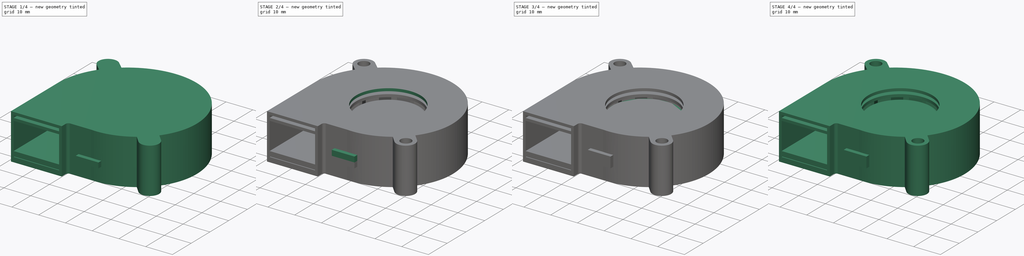
[diagram: build sequence overview — one tinted view per stage of 4, left to right]
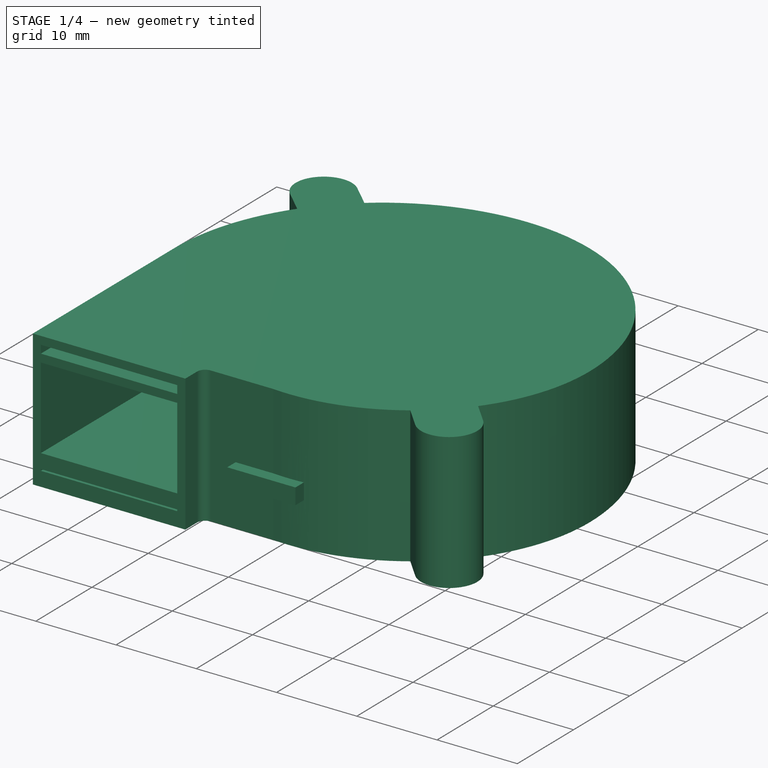
[diagram: stage 1 of 4 — iso view after this stage's code; geometry added in this stage tinted green]
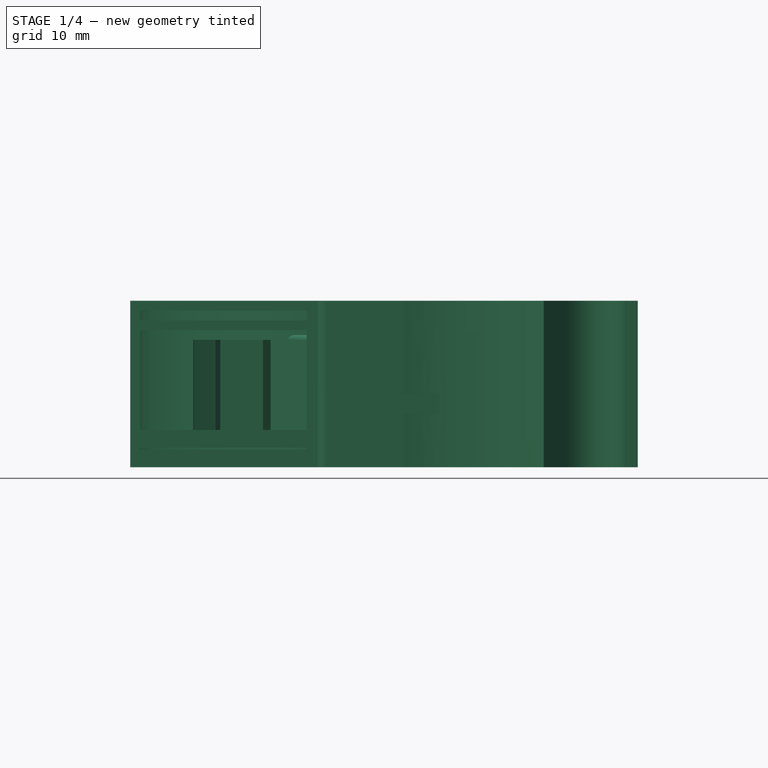
[diagram: stage 1 of 4 — front view after this stage's code; geometry added in this stage tinted green]
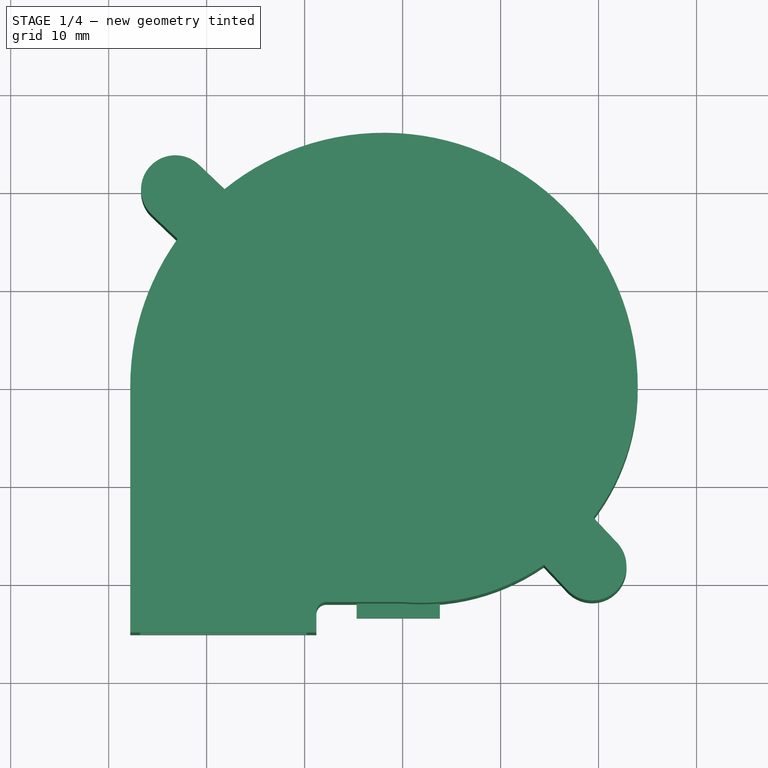
[diagram: stage 1 of 4 — top view after this stage's code; geometry added in this stage tinted green]
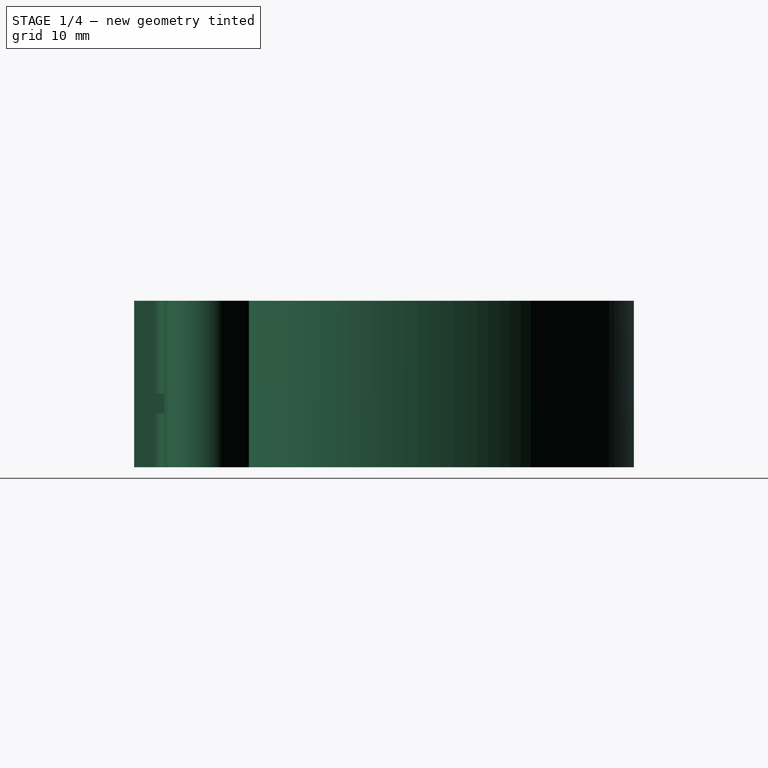
[diagram: stage 1 of 4 — right view after this stage's code; geometry added in this stage tinted green]
FCSTD DOCUMENT  (FreeCAD 0.14R3310 (Git))
Label: 79. VENTILADOR DE LA TOBERA
License: CC-BY 3.0
LicenseURL: http://creativecommons.org/licenses/by/3.0/
objects: Sketcher::SketchObject×9, PartDesign::Pad×6, Part::Feature×4, Part::Part2DObjectPython×4, PartDesign::Pocket×3, App::DocumentObjectGroup×3, PartDesign::PolarPattern×2, Part::Fillet×1, Part::Cut×1, Part::Compound×1
note: 40 computed .brp shape members not serialized (recipe doc carries the construction recipe); baked Part::Feature solids carry a one-line shape summary decoded from their .brp

FEATURE [App::DocumentObjectGroup] Group  label="Inner-part-src"
  Group = -> [Pad,Pad001,Pocket,PolarPattern,Pad002,PolarPattern001,Fillet]
FEATURE [Part::Feature] Fillet001  label="Inner-part-final"
  shape: bbox 43 x 43 x 11.5 mm, 153 faces (baked)
FEATURE [Sketcher::SketchObject] Sketch004  label="cover-main-body-sketch"
  sketch-geometry (22):
    g0: LineSegment [constr] StartX=-27.8 StartY=0 StartZ=0 EndX=24 EndY=0 EndZ=0
    g1: ArcOfCircle CenterX=-1.9 CenterY=0 CenterZ=0 NormalX=0 NormalY=0 NormalZ=1 Radius=25.9 StartAngle=0 EndAngle=2.25018
    g2: LineSegment StartX=-27.8 StartY=0 StartZ=0 EndX=-27.8 EndY=-25.1 EndZ=0
    g3: LineSegment StartX=-27.8 StartY=-25.1 StartZ=0 EndX=-8.8 EndY=-25.1 EndZ=0
    g4: LineSegment StartX=-7.8 StartY=-22 StartZ=0 EndX=0 EndY=-22 EndZ=0
    g5: LineSegment StartX=-8.8 StartY=-23 StartZ=0 EndX=-8.8 EndY=-25.1 EndZ=0
    g6: ArcOfCircle CenterX=1.91667 CenterY=0 CenterZ=0 NormalX=0 NormalY=0 NormalZ=1 Radius=22.0833 StartAngle=4.62549 EndAngle=5.31358
    g7: ArcOfCircle CenterX=-7.8 CenterY=-23 CenterZ=0 NormalX=0 NormalY=0 NormalZ=1 Radius=1 StartAngle=1.5708 EndAngle=3.14159
    g8: LineSegment [constr] StartX=16.8 StartY=-20.7501 StartZ=0 EndX=21.8944 EndY=-15.9494 EndZ=0
    g9: Circle [constr] CenterX=19.4 CenterY=-18.3 CenterZ=0 NormalX=0 NormalY=0 NormalZ=1 Radius=2
    g10: LineSegment StartX=14.4075 StartY=-18.2113 StartZ=0 EndX=16.8 EndY=-20.7501 EndZ=0
    g11: LineSegment [constr] StartX=19.4 StartY=-18.3 StartZ=0 EndX=24.4 EndY=-18.3 EndZ=0
    g12: LineSegment StartX=19.4797 StartY=-13.387 StartZ=0 EndX=21.8944 EndY=-15.9494 EndZ=0
    g13: ArcOfCircle CenterX=19.3472 CenterY=-18.3498 CenterZ=0 NormalX=0 NormalY=0 NormalZ=1 Radius=3.5 StartAngle=3.89732 EndAngle=7.03891
    g14: ArcOfCircle CenterX=1.91667 CenterY=0 CenterZ=0 NormalX=0 NormalY=0 NormalZ=1 Radius=22.0833 StartAngle=5.63191 EndAngle=6.28319
    g15: Circle [constr] CenterX=-23.2 CenterY=20.1 CenterZ=0 NormalX=0 NormalY=0 NormalZ=1 Radius=2
    g16: LineSegment [constr] StartX=-25.6122 StartY=17.564 StartZ=0 EndX=-20.7878 EndY=22.636 EndZ=0
    g17: LineSegment [constr] StartX=-23.2 StartY=20.1 StartZ=0 EndX=-19.2 EndY=20.1 EndZ=0
    g18: LineSegment StartX=-20.7878 StartY=22.636 StartZ=0 EndX=-18.1733 EndY=20.1492 EndZ=0
    g19: LineSegment StartX=-25.6122 StartY=17.564 StartZ=0 EndX=-22.9748 EndY=15.0554 EndZ=0
    g20: ArcOfCircle CenterX=-1.9 CenterY=0 CenterZ=0 NormalX=0 NormalY=0 NormalZ=1 Radius=25.9 StartAngle=2.52128 EndAngle=3.14159
    g21: ArcOfCircle CenterX=-23.2 CenterY=20.1 CenterZ=0 NormalX=0 NormalY=0 NormalZ=1 Radius=3.5 StartAngle=0.81042 EndAngle=3.95202
  constraints (67):
    c: Horizontal(g0)
    c: DistanceX(g0) = 51.8
    c: PointOnObject(g1,g0)
    c: Coincident(g20,g0)
    c: Coincident(g1,g0)
    c: DistanceX(g-1,g1) = -1.9
    c: PointOnObject(g1,g-1)
    c: Vertical(g2)
    c: Tangent(g2,g1)
    c: Coincident(g2,g0)
    c: DistanceY(g2) = -25.1
    c: Horizontal(g3)
    c: Coincident(g3,g2)
    c: DistanceX(g3) = 19
    c: Horizontal(g4)
    c: Vertical(g5)
    c: Coincident(g5,g3)
    c: PointOnObject(g4,g-2)
    c: Coincident(g14,g0)
    c: Coincident(g6,g4)
    c: PointOnObject(g6,g0)
    c: Tangent(g4,g7)
    c: Tangent(g5,g7)
    c: Radius(g7) = 1
    c: DistanceY(g4,g3) = -3.1
    c: Distance(g8) = 7
    c: DistanceX(g-1,g9) = 19.4
    c: DistanceY(g-1,g9) = -18.3
    c: PointOnObject(g9,g8)
    c: Coincident(g10,g8)
    c: Perpendicular(g10,g8)
    c: Horizontal(g11)
    c: Coincident(g11,g9)
    c: DistanceX(g11) = 5
    c: Angle(g11,g8) = 0.755728
    c: DistanceX(g8,g9) = 2.6
    c: Radius(g9) = 2
    c: Coincident(g12,g8)
    c: Parallel(g12,g10)
    c: Coincident(g13,g8)
    c: Coincident(g13,g8)
    c: Radius(g13) = 3.5
    c: Equal(g6,g14)
    c: Coincident(g6,g10)
    c: Coincident(g14,g12)
    c: Coincident(g6,g14)
    c: Radius(g15) = 2
    c: DistanceX(g-1,g15) = -23.2
    c: DistanceY(g-1,g15) = 20.1
    c: PointOnObject(g15,g16)
    c: Distance(g16) = 7
    c: Symmetric(g16,g16,g15)
    c: Horizontal(g17)
    c: Coincident(g17,g15)
    c: DistanceX(g17) = 4
    c: Angle(g16,g17) = 2.33117
    c: Coincident(g18,g16)
    c: Perpendicular(g18,g16)
    c: Parallel(g19,g18)
    c: Coincident(g19,g16)
    c: Equal(g1,g20)
    c: Coincident(g1,g18)
    c: Coincident(g20,g19)
    c: Coincident(g1,g20)
    c: Coincident(g21,g16)
    c: Coincident(g21,g16)
    c: Radius(g21) = 3.5
FEATURE [Part::Part2DObjectPython] Line002  # Draft 2D object (typed FeaturePython)
  ChamferSize = 0
  Closed = false
  End = (19.4,-18.3,15)
  FilletRadius = 0
  MakeFace = false
  Points = (2) [(0,0,15),(19.4,-18.3,15)]
  Start = (0,0,15)
  Support = -> Part__Feature
FEATURE [Part::Part2DObjectPython] Line003  # Draft 2D object (typed FeaturePython)
  ChamferSize = 0
  Closed = false
  End = (-23.2,20.1,15)
  FilletRadius = 0
  MakeFace = false
  Points = (2) [(0,0,15),(-23.2,20.1,15)]
  Start = (0,0,15)
  Support = -> Part__Feature
FEATURE [App::DocumentObjectGroup] Construction
  Group = -> [Line,Line001,Line002,Line003]
FEATURE [PartDesign::Pad] Pad003  label="cover-main-body"
  Length = 15
  Length2 = 100
  Sketch = -> Sketch004
  Type = 0
FEATURE [Sketcher::SketchObject] Sketch005  label="cover-inner-sketch"
  Placement = pos=(0,0,1.8) rot=(0,0,1;0rad)
  sketch-geometry (8):
    g0: LineSegment [constr] StartX=-26.8 StartY=0 StartZ=0 EndX=23 EndY=0 EndZ=0
    g1: ArcOfCircle CenterX=-1.9 CenterY=0 CenterZ=0 NormalX=0 NormalY=0 NormalZ=1 Radius=24.9 StartAngle=0 EndAngle=3.14159
    g2: LineSegment StartX=-26.8 StartY=0 StartZ=0 EndX=-26.8 EndY=-25.5 EndZ=0
    g3: LineSegment StartX=-26.8 StartY=-25.5 StartZ=0 EndX=-9.8 EndY=-25.5 EndZ=0
    g4: LineSegment StartX=-9.8 StartY=-23.4 StartZ=0 EndX=-9.8 EndY=-25.5 EndZ=0
    g5: LineSegment StartX=-7.8 StartY=-21.4 StartZ=0 EndX=0 EndY=-21.4 EndZ=0
    g6: ArcOfCircle CenterX=-7.8 CenterY=-23.4 CenterZ=0 NormalX=0 NormalY=0 NormalZ=1 Radius=2 StartAngle=1.5708 EndAngle=3.14159
    g7: ArcOfCircle CenterX=1.54435 CenterY=0 CenterZ=0 NormalX=0 NormalY=0 NormalZ=1 Radius=21.4557 StartAngle=4.64035 EndAngle=6.28319
  constraints (24):
    c: Horizontal(g0)
    c: DistanceX(g0) = 49.8
    c: PointOnObject(g0,g-1)
    c: PointOnObject(g1,g0)
    c: Coincident(g1,g0)
    c: Coincident(g1,g0)
    c: DistanceX(g-1,g1) = -1.9
    c: DistanceY(g2) = -25.5
    c: Coincident(g2,g0)
    c: Vertical(g2)
    c: Horizontal(g3)
    c: Coincident(g3,g2)
    c: DistanceX(g3) = 17
    c: Vertical(g4)
    c: Coincident(g4,g3)
    c: Horizontal(g5)
    c: PointOnObject(g5,g-2)
    c: Tangent(g4,g6)
    c: Tangent(g5,g6)
    c: Radius(g6) = 2
    c: DistanceY(g5,g3) = -4.1
    c: Coincident(g7,g0)
    c: Coincident(g7,g5)
    c: PointOnObject(g7,g0)
FEATURE [PartDesign::Pad] Pad004  label="cover-inner"
  Length = 12.2
  Length2 = 100
  Placement = pos=(0,0,1.8) rot=(0,0,1;0rad)
  Sketch = -> Sketch005
  Type = 0
FEATURE [Part::Cut] Cut  label="cover-1"
  Base = -> Pad003
  Tool = -> Pad004
FEATURE [App::DocumentObjectGroup] Group001  label="cover-src"
  Group = -> [Cut,Pocket001,Pocket002,Pad005]
FEATURE [Part::Feature] Pad005001  label="cover-final"
  Placement = pos=(0,0,-2) rot=(0,0,1;0rad)
  shape: bbox 51.8 x 51 x 15 mm, 33 faces (baked)
FEATURE [Part::Compound] Compound  label="Blower-50x50-final"
  Links = -> [Fillet001,Pad005001]
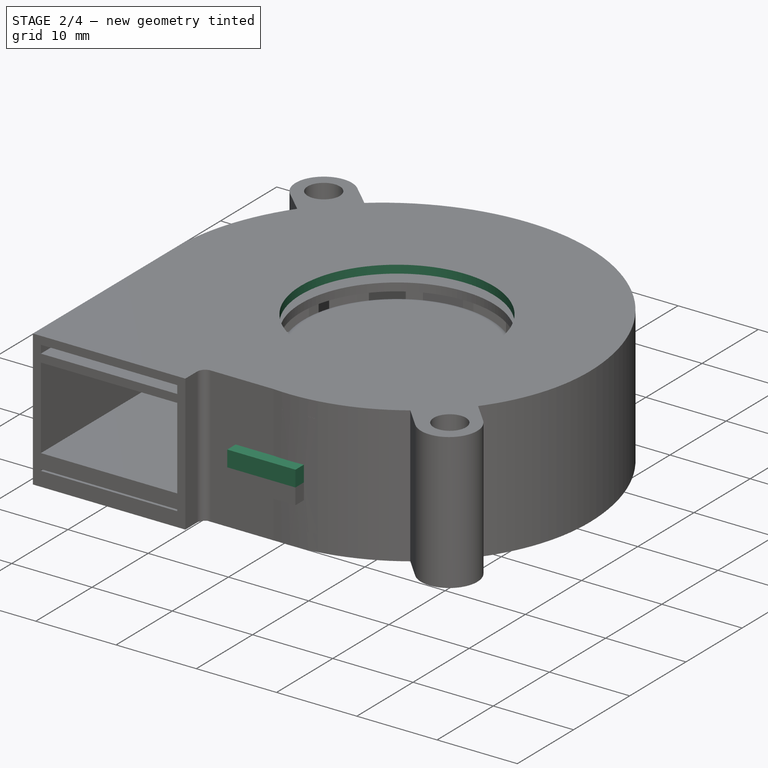
[diagram: stage 2 of 4 — iso view after this stage's code; geometry added in this stage tinted green]
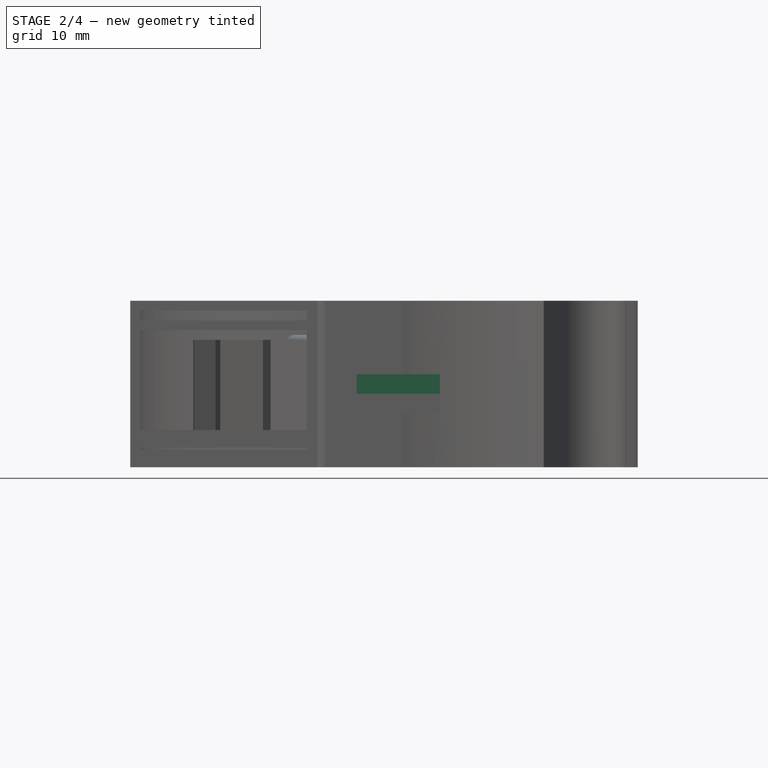
[diagram: stage 2 of 4 — front view after this stage's code; geometry added in this stage tinted green]
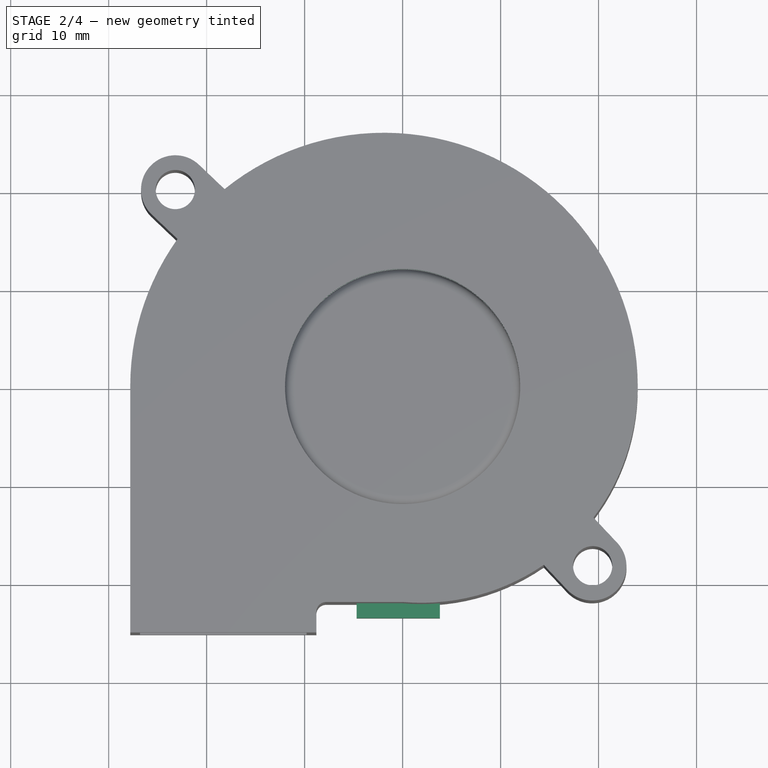
[diagram: stage 2 of 4 — top view after this stage's code; geometry added in this stage tinted green]
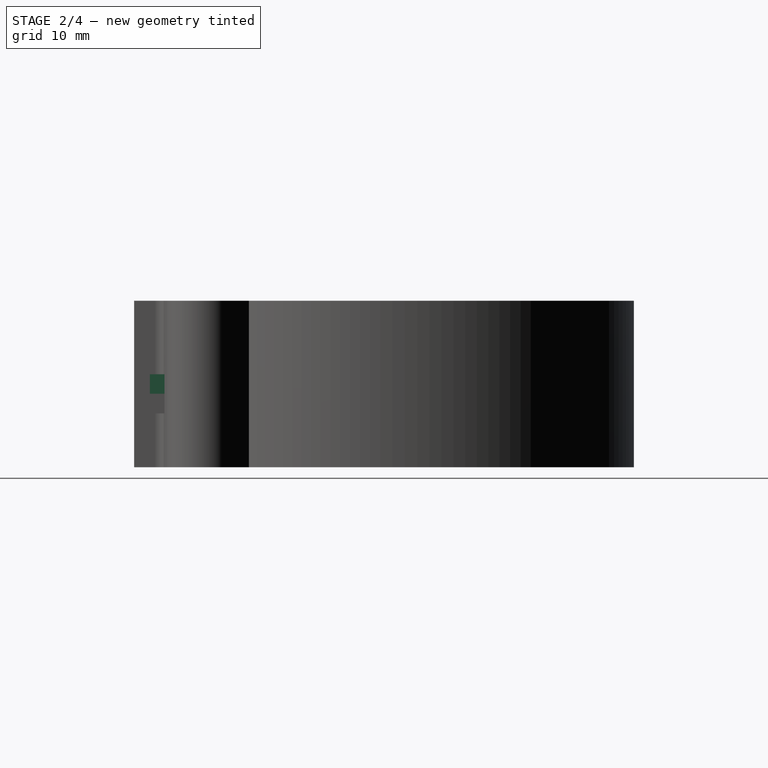
[diagram: stage 2 of 4 — right view after this stage's code; geometry added in this stage tinted green]
FEATURE [Sketcher::SketchObject] Sketch006  label="top-cutout-sketch"
  Placement = pos=(0,0,15) rot=(0,0,1;0rad)
  Support = -> Cut [Face5]
  sketch-geometry (1):
    g0: Circle CenterX=0 CenterY=0 CenterZ=0 NormalX=0 NormalY=0 NormalZ=1 Radius=12
  constraints (2):
    c: Coincident(g0,g-1)
    c: Radius(g0) = 12
FEATURE [PartDesign::Pocket] Pocket001  label="top-cutout"
  Length = 5
  Sketch = -> Sketch006
  Type = 0
FEATURE [Sketcher::SketchObject] Sketch007  label="drills-sketch"
  Placement = pos=(0,0,15) rot=(0,0,1;0rad)
  Support = -> Pocket001 [Face5]
  sketch-geometry (2):
    g0: Circle CenterX=-23.2 CenterY=20.1 CenterZ=0 NormalX=0 NormalY=0 NormalZ=1 Radius=2
    g1: Circle CenterX=19.4 CenterY=-18.3 CenterZ=0 NormalX=0 NormalY=0 NormalZ=1 Radius=2
  constraints (6):
    c: Equal(g1,g0)
    c: Radius(g0) = 2
    c: DistanceX(g-1,g0) = -23.2
    c: DistanceY(g-1,g0) = 20.1
    c: DistanceY(g-1,g1) = -18.3
    c: DistanceX(g-1,g1) = 19.4
FEATURE [PartDesign::Pocket] Pocket002  label="drills"
  Length = 5
  Sketch = -> Sketch007
  Type = 1
FEATURE [Sketcher::SketchObject] Sketch008  label="pad-1-sketch"
  Placement = pos=(0,-22,0) rot=(1,0,0;1.5708rad)
  Support = -> Pocket002 [Face12]
  sketch-geometry (4):
    g0: LineSegment StartX=-4.7 StartY=7.5 StartZ=0 EndX=3.8 EndY=7.5 EndZ=0
    g1: LineSegment StartX=3.8 StartY=7.5 StartZ=0 EndX=3.8 EndY=5.5 EndZ=0
    g2: LineSegment StartX=3.8 StartY=5.5 StartZ=0 EndX=-4.7 EndY=5.5 EndZ=0
    g3: LineSegment StartX=-4.7 StartY=5.5 StartZ=0 EndX=-4.7 EndY=7.5 EndZ=0
  constraints (12):
    c: Coincident(g0,g1)
    c: Coincident(g1,g2)
    c: Coincident(g2,g3)
    c: Coincident(g3,g0)
    c: Horizontal(g0)
    c: Horizontal(g2)
    c: Vertical(g1)
    c: Vertical(g3)
    c: DistanceX(g0) = 8.5
    c: DistanceY(g3) = 2
    c: DistanceX(g1) = 3.8
    c: DistanceY(g1) = 5.5
FEATURE [PartDesign::Pad] Pad005  label="pad-1"
  Length = 1.5
  Length2 = 100
  Sketch = -> Sketch008
  Type = 0
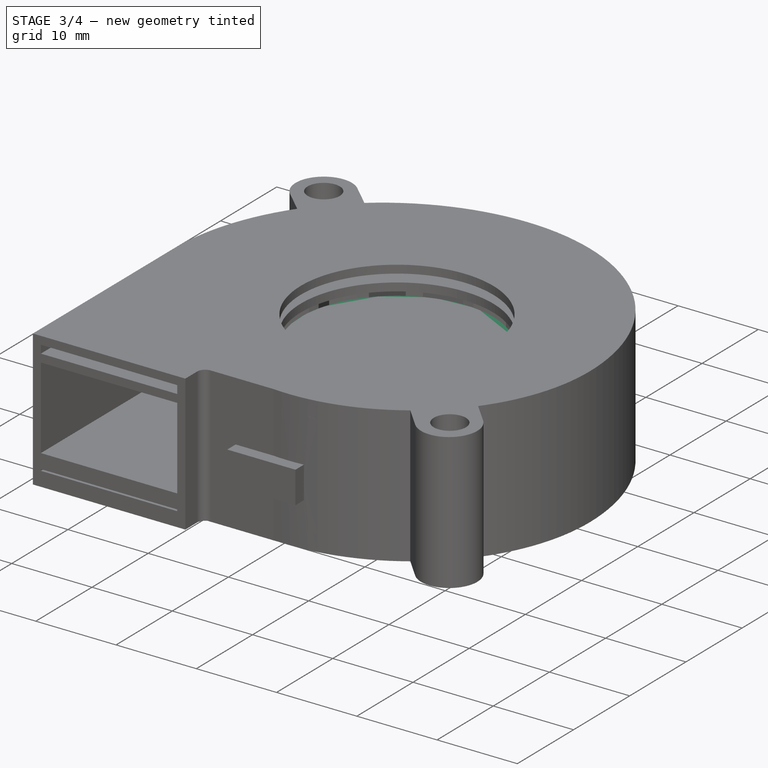
[diagram: stage 3 of 4 — iso view after this stage's code; geometry added in this stage tinted green]
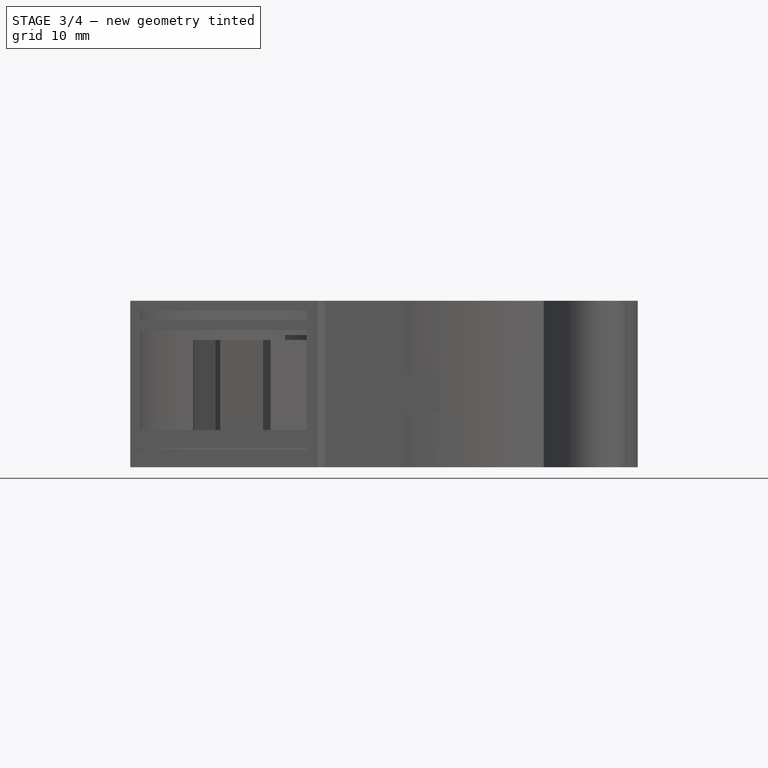
[diagram: stage 3 of 4 — front view after this stage's code; geometry added in this stage tinted green]
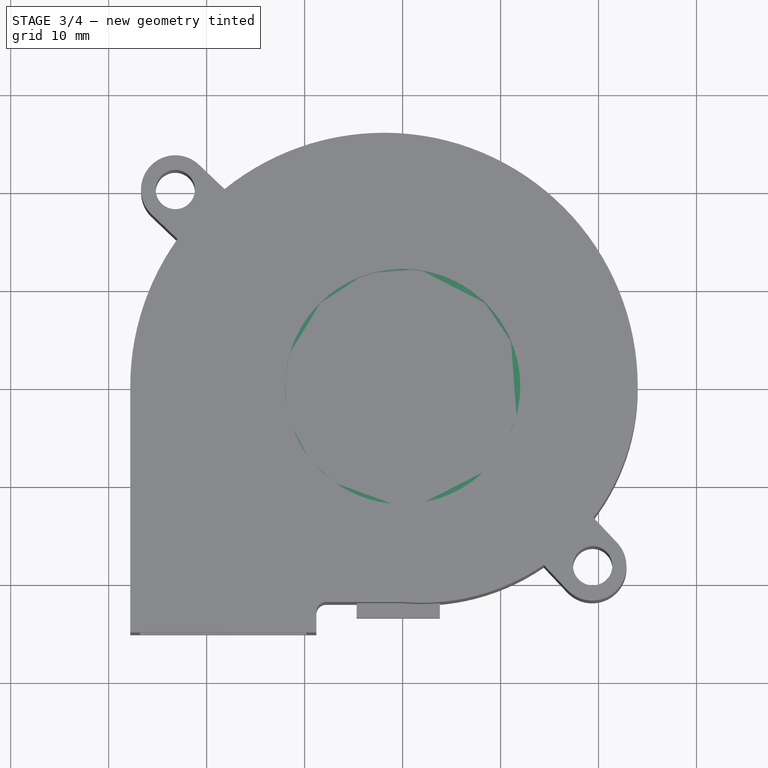
[diagram: stage 3 of 4 — top view after this stage's code; geometry added in this stage tinted green]
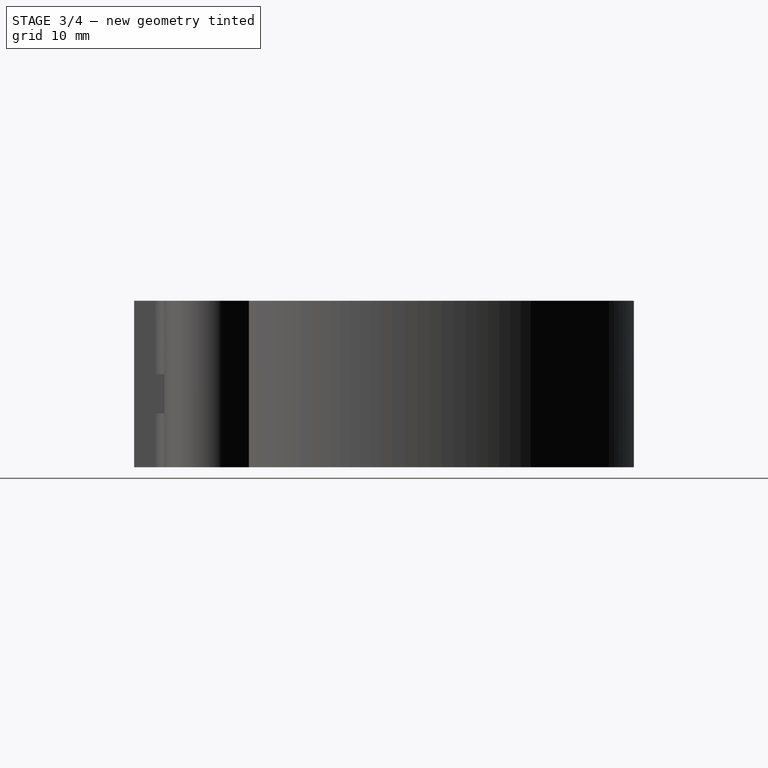
[diagram: stage 3 of 4 — right view after this stage's code; geometry added in this stage tinted green]
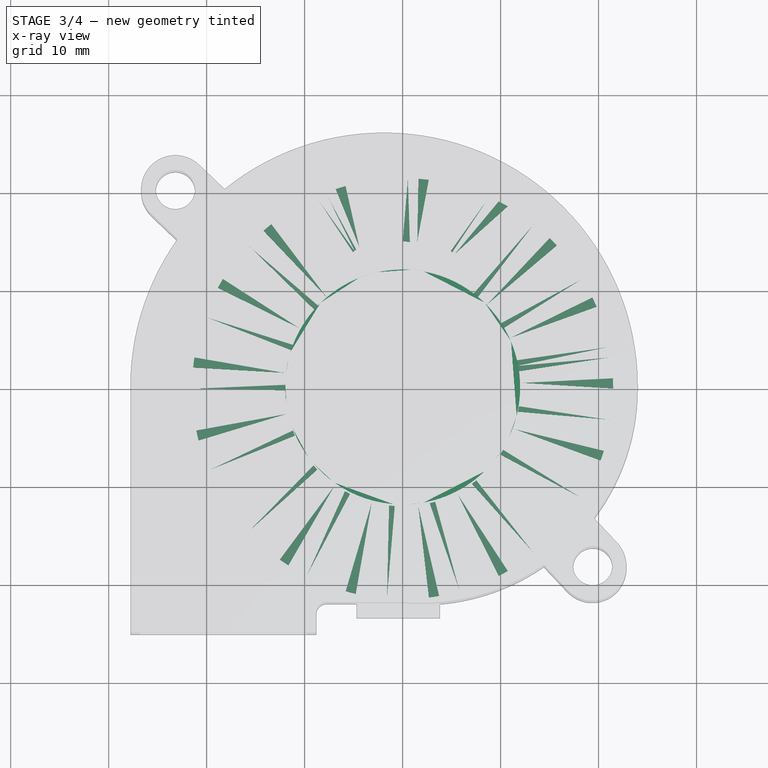
[diagram: stage 3 of 4 — x-ray composite at the top view; earlier geometry ghosted, this stage's added geometry solid]
FEATURE [Part::Feature] Part__Feature  label="TFD-B5015 TITAN"
  Placement = pos=(0,0,7.5) rot=(0,0,1;0rad)
  shape: bbox 51.8 x 51.1 x 15 mm, 65 faces (baked)
FEATURE [Part::Feature] Part__Feature001  label="TFD-B5015 TITAN001"
  shape: bbox 43 x 43 x 11.5 mm, 91 faces (baked)
FEATURE [Sketcher::SketchObject] Sketch  label="base-sketch"
  sketch-geometry (1):
    g0: Circle CenterX=0 CenterY=0 CenterZ=0 NormalX=0 NormalY=0 NormalZ=1 Radius=21.5
  constraints (2):
    c: Coincident(g0,g-1)
    c: Radius(g0) = 21.5
FEATURE [PartDesign::Pad] Pad  label="base"
  Length = 1.5
  Length2 = 100
  Sketch = -> Sketch
  Type = 0
FEATURE [Sketcher::SketchObject] Sketch001  label="main-body-sketch"
  Placement = pos=(0,0,1.5) rot=(0,0,1;0rad)
  Support = -> Pad [Face3]
  sketch-geometry (1):
    g0: Circle CenterX=0 CenterY=0 CenterZ=0 NormalX=0 NormalY=0 NormalZ=1 Radius=12
  constraints (2):
    c: Coincident(g0,g-1)
    c: Radius(g0) = 12
FEATURE [PartDesign::Pad] Pad001  label="main-body"
  Length = 10
  Length2 = 100
  Sketch = -> Sketch001
  Type = 0
FEATURE [Part::Part2DObjectPython] Line  # Draft 2D object (typed FeaturePython)
  ChamferSize = 0
  Closed = false
  End = (0,0,10.5)
  FilletRadius = 0
  MakeFace = false
  Points = (2) [(-2.07596,14.8557,11),(0,0,10.5)]
  Start = (-2.07596,14.8557,11)
  Support = -> Part__Feature001
FEATURE [Part::Part2DObjectPython] Line001  # Draft 2D object (typed FeaturePython)
  ChamferSize = 0
  Closed = false
  End = (4.6539,11.0608,10.5)
  FilletRadius = 0
  MakeFace = false
  Points = (2) [(0,0,10.5),(4.6539,11.0608,10.5)]
  Start = (0,0,10.5)
  Support = -> Part__Feature001
FEATURE [Sketcher::SketchObject] Sketch002  label="cutout-1-sketch"
  ExternalGeometry = -> [Pad001]
  Placement = pos=(0,0,1.5) rot=(0,0,1;0rad)
  Support = -> Pad001 [Face3]
  sketch-geometry (7):
    g0: Circle [constr] CenterX=0 CenterY=0 CenterZ=0 NormalX=0 NormalY=0 NormalZ=1 Radius=15
    g1: LineSegment [constr] StartX=-4.38558 StartY=14.3446 StartZ=0 EndX=0 EndY=0 EndZ=0
    g2: GeomPoint [constr] X=-3.50846 Y=11.4757 Z=0
    g3: ArcOfCircle CenterX=-3.94702 CenterY=12.9101 CenterZ=0 NormalX=0 NormalY=0 NormalZ=1 Radius=1.5 StartAngle=1.8675 EndAngle=5.00909
    g4: ArcOfCircle CenterX=3.94702 CenterY=12.9101 CenterZ=0 NormalX=0 NormalY=0 NormalZ=1 Radius=1.5 StartAngle=4.41568 EndAngle=7.55728
    g5: ArcOfCircle CenterX=0 CenterY=0 CenterZ=0 NormalX=0 NormalY=0 NormalZ=1 Radius=15 StartAngle=1.27409 EndAngle=1.8675
    g6: ArcOfCircle CenterX=0 CenterY=0 CenterZ=0 NormalX=0 NormalY=0 NormalZ=1 Radius=12 StartAngle=1.27409 EndAngle=1.8675
  constraints (19):
    c: Coincident(g0,g-1)
    c: Radius(g0) = 15
    c: Coincident(g1,g-1)
    c: PointOnObject(g1,g0)
    c: Angle(g-2,g1) = 0.296706
    c: PointOnObject(g2,g1)
    c: PointOnObject(g2,g-3)
    c: PointOnObject(g3,g1)
    c: Coincident(g3,g1)
    c: Coincident(g3,g2)
    c: Symmetric(g3,g4,g-2)
    c: Symmetric(g4,g1,g-2)
    c: Symmetric(g4,g2,g-2)
    c: Coincident(g5,g-1)
    c: Coincident(g5,g1)
    c: Coincident(g5,g4)
    c: Coincident(g6,g4)
    c: Coincident(g6,g2)
    c: Radius(g6) = 12
FEATURE [PartDesign::Pocket] Pocket  label="cutout-1"
  Length = 5
  Sketch = -> Sketch002
  Type = 1
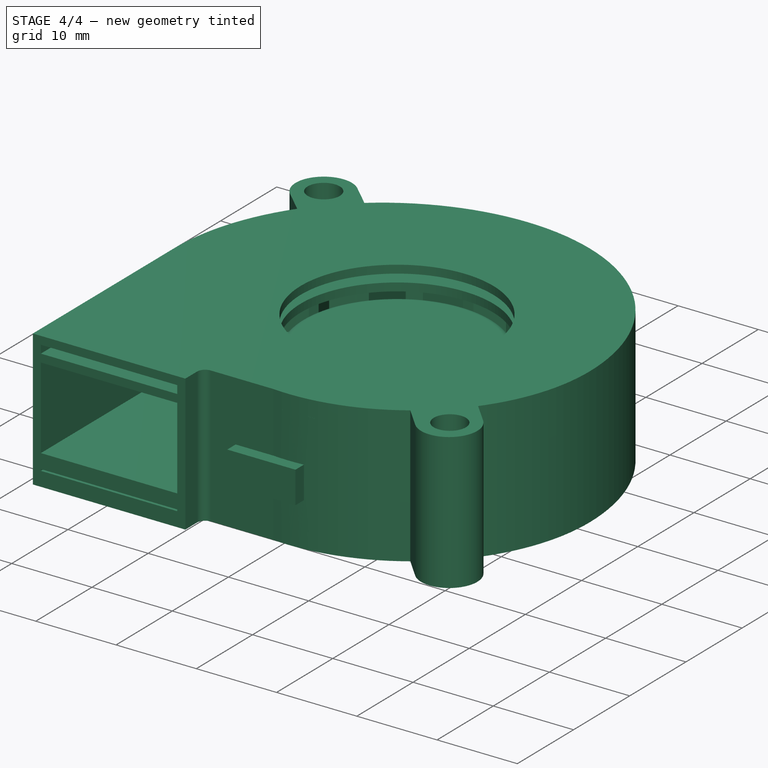
[diagram: stage 4 of 4 — iso view after this stage's code; geometry added in this stage tinted green]
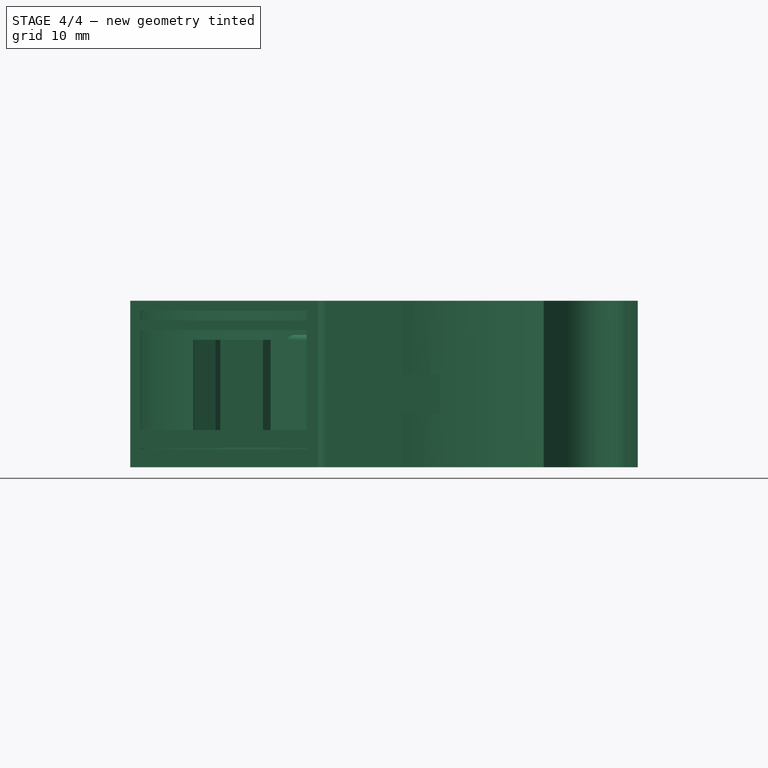
[diagram: stage 4 of 4 — front view after this stage's code; geometry added in this stage tinted green]
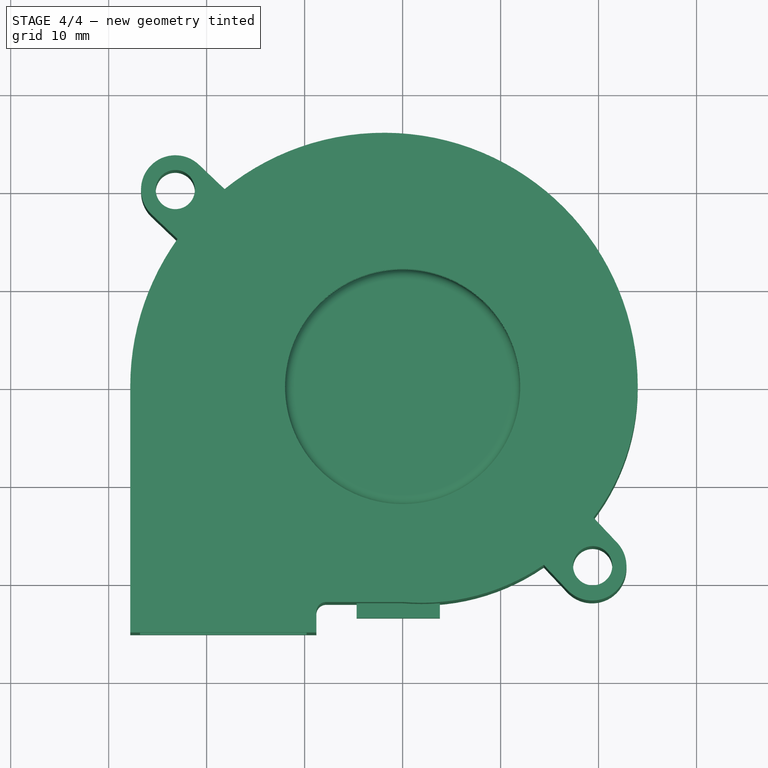
[diagram: stage 4 of 4 — top view after this stage's code; geometry added in this stage tinted green]
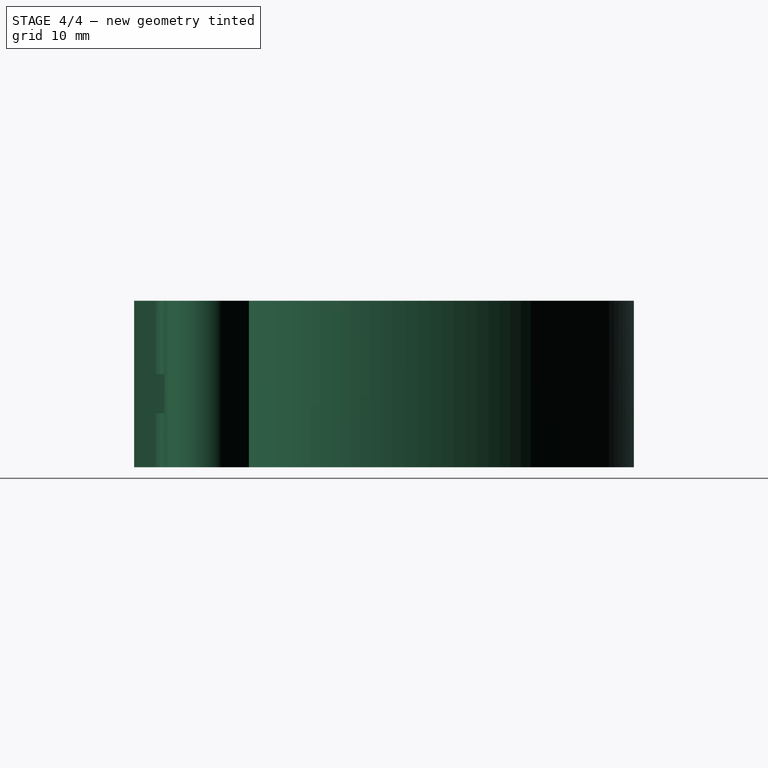
[diagram: stage 4 of 4 — right view after this stage's code; geometry added in this stage tinted green]
FEATURE [PartDesign::PolarPattern] PolarPattern  label="bottom-slots"
  Angle = 360
  Axis = -> Sketch002 [N_Axis]
  Occurrences = 6
  Originals = -> [Pocket]
FEATURE [Sketcher::SketchObject] Sketch003  label="arm-sketch"
  ExternalGeometry = -> [PolarPattern]
  Placement = pos=(0,0,1.5) rot=(0,0,1;0rad)
  Support = -> PolarPattern [Face3]
  sketch-geometry (6):
    g0: LineSegment StartX=-0.967985 StartY=14.9687 StartZ=0 EndX=3.63577 EndY=21.1904 EndZ=0
    g1: LineSegment [constr] StartX=-0.967985 StartY=14.9687 StartZ=0 EndX=3.03202 EndY=14.9687 EndZ=0
    g2: LineSegment StartX=-2.17082 StartY=14.8421 StartZ=0 EndX=2.63577 EndY=21.3378 EndZ=0
    g3: LineSegment [constr] StartX=-0.967985 StartY=14.9687 StartZ=0 EndX=0 EndY=0 EndZ=0
    g4: LineSegment StartX=2.63577 StartY=21.3378 StartZ=0 EndX=3.63577 EndY=21.1904 EndZ=0
    g5: LineSegment StartX=-2.17082 StartY=14.8421 StartZ=0 EndX=-0.967985 EndY=14.9687 EndZ=0
  constraints (17):
    c: PointOnObject(g0,g-3)
    c: Horizontal(g1)
    c: Coincident(g1,g0)
    c: DistanceX(g1) = 4
    c: Angle(g1,g0) = 0.933751
    c: PointOnObject(g0,g-4)
    c: Parallel(g2,g0)
    c: PointOnObject(g2,g-4)
    c: PointOnObject(g2,g-3)
    c: Coincident(g3,g-1)
    c: Coincident(g3,g0)
    c: Angle(g-2,g3) = 0.0645772
    c: DistanceX(g0,g2) = -1
    c: Coincident(g4,g2)
    c: Coincident(g4,g0)
    c: Coincident(g5,g2)
    c: Coincident(g5,g0)
FEATURE [PartDesign::Pad] Pad002  label="arm-master"
  Length = 9.5
  Length2 = 100
  Sketch = -> Sketch003
  Type = 0
FEATURE [PartDesign::PolarPattern] PolarPattern001  label="arms001"
  Angle = 360
  Axis = -> Sketch003 [N_Axis]
  Occurrences = 17
  Originals = -> [Pad002]
FEATURE [Part::Fillet] Fillet
  Base = -> PolarPattern001
  Edges = 1 edges r=1: [Edge57]
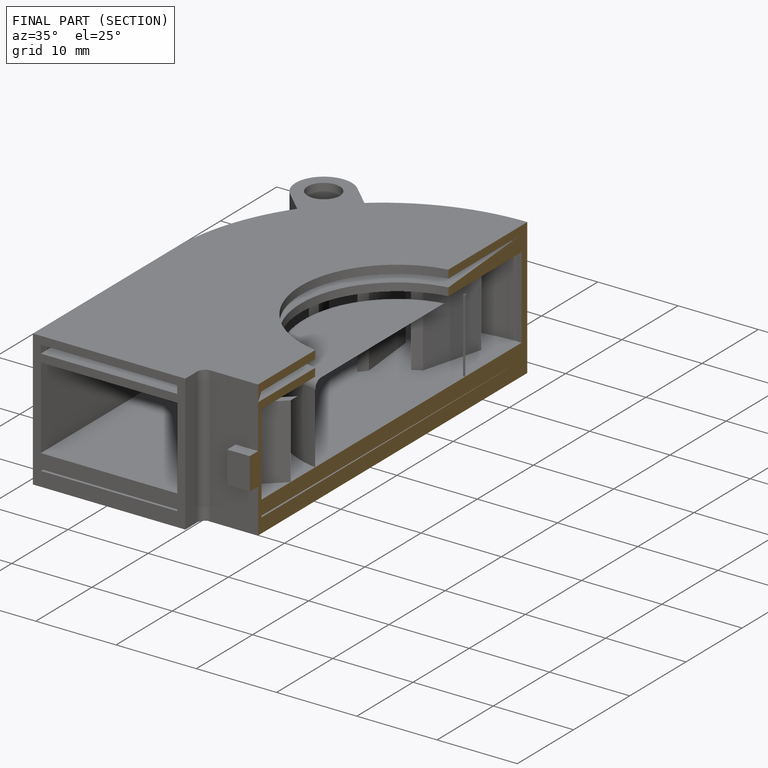
[diagram: finished part — half-section view (interior)]
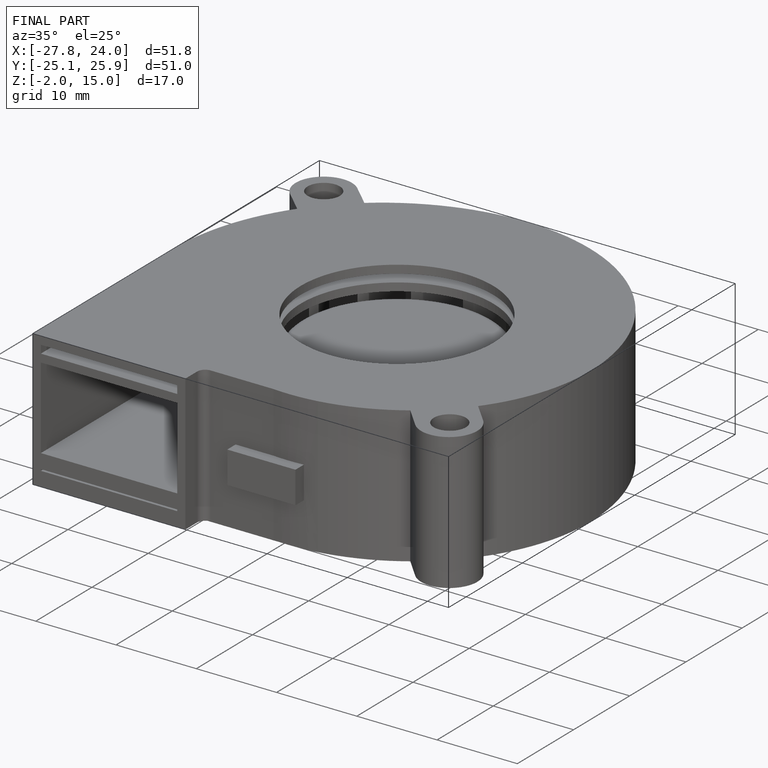
[diagram: finished part — iso view with bounding-box wireframe]
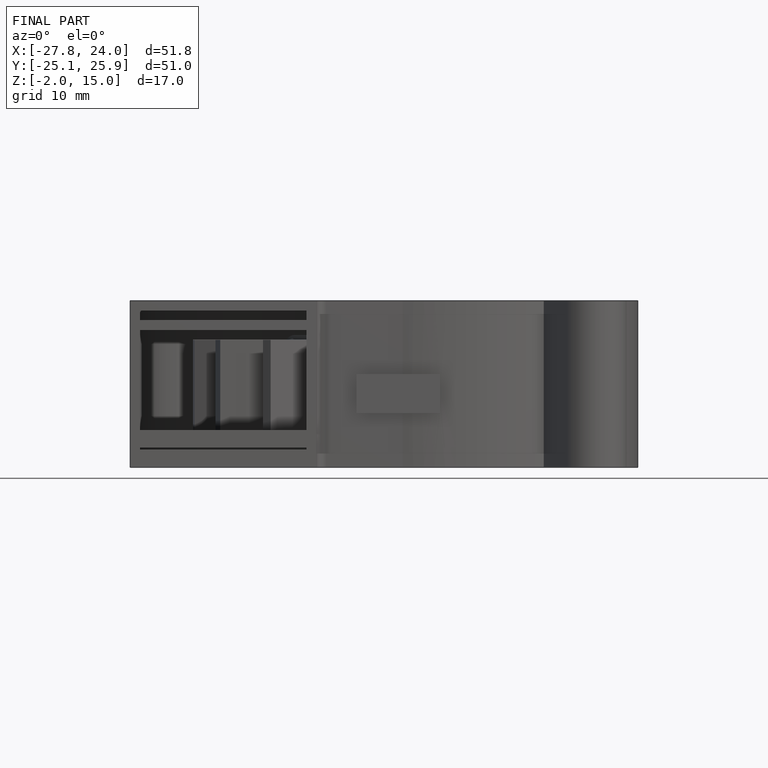
[diagram: finished part — front view with bounding-box wireframe]
